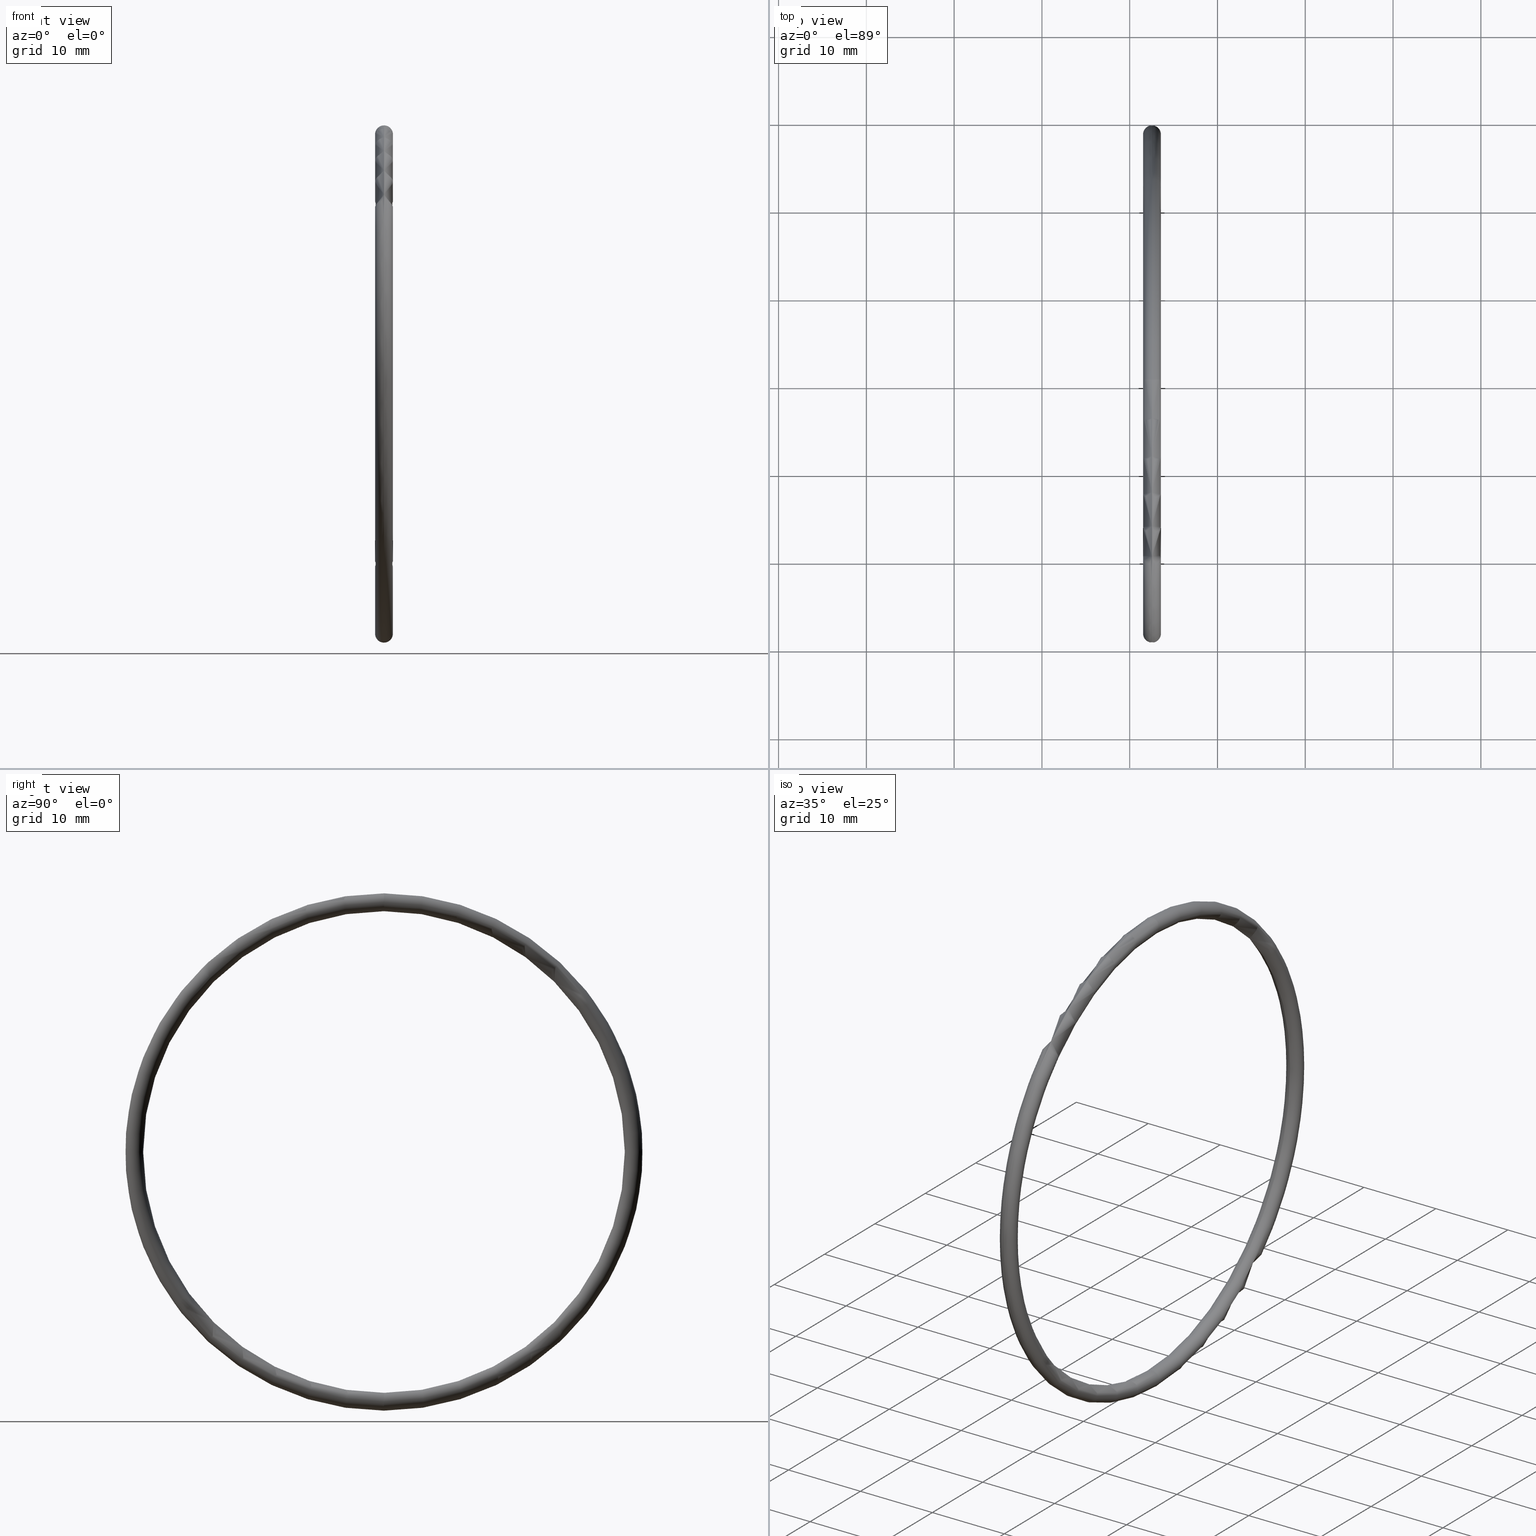
[diagram: canonical four-view strip — front | top / right | iso, engineering-drawing reading convention]
A machine part, canonical four-view strip (front | top / right | iso — engineering-drawing reading convention). The complete STEP part file that produces these views, byte-faithful:
ISO-10303-21;
HEADER;
FILE_DESCRIPTION (( 'STEP AP203' ),
    '1' );
FILE_NAME ('OM-63-VT.STEP',
    '2008-06-24T10:43:18',
    ( 'BSI05' ),
    ( 'BAYSTATE' ),
    'SwSTEP 2.0',
    'SolidWorks 2007',
    '' );
FILE_SCHEMA (( 'CONFIG_CONTROL_DESIGN' ));
ENDSEC;

DATA;
#1 = ORIENTED_EDGE ( 'NONE', *, *, #2, .T. ) ;
#2 = EDGE_CURVE ( 'NONE', #37, #30, #45, .T. ) ;
#3 = ORIENTED_EDGE ( 'NONE', *, *, #2, .F. ) ;
#4 = ADVANCED_FACE ( 'NONE', ( #53 ), #51, .T. ) ;
#5 = EDGE_CURVE ( 'NONE', #24, #37, #48, .T. ) ;
#6 = ORIENTED_EDGE ( 'NONE', *, *, #7, .F. ) ;
#7 = EDGE_CURVE ( 'NONE', #24, #33, #79, .T. ) ;
#8 = ORIENTED_EDGE ( 'NONE', *, *, #5, .T. ) ;
#9 = ORIENTED_EDGE ( 'NONE', *, *, #7, .T. ) ;
#10 = EDGE_LOOP ( 'NONE', ( #17, #3, #21, #9 ) ) ;
#11 = CLOSED_SHELL ( 'NONE', ( #14, #34, #23, #4 ) ) ;
#12 = ORIENTED_EDGE ( 'NONE', *, *, #20, .F. ) ;
#13 = ORIENTED_EDGE ( 'NONE', *, *, #5, .F. ) ;
#14 = ADVANCED_FACE ( 'NONE', ( #92 ), #109, .T. ) ;
#15 = EDGE_LOOP ( 'NONE', ( #16, #22, #31, #26 ) ) ;
#16 = ORIENTED_EDGE ( 'NONE', *, *, #36, .F. ) ;
#17 = ORIENTED_EDGE ( 'NONE', *, *, #46, .F. ) ;
#18 = EDGE_LOOP ( 'NONE', ( #12, #6, #8, #1 ) ) ;
#19 = ORIENTED_EDGE ( 'NONE', *, *, #20, .T. ) ;
#20 = EDGE_CURVE ( 'NONE', #33, #30, #108, .T. ) ;
#21 = ORIENTED_EDGE ( 'NONE', *, *, #27, .T. ) ;
#22 = ORIENTED_EDGE ( 'NONE', *, *, #46, .T. ) ;
#23 = ADVANCED_FACE ( 'NONE', ( #69 ), #85, .T. ) ;
#24 = VERTEX_POINT ( 'NONE', #77 ) ;
#25 = EDGE_LOOP ( 'NONE', ( #29, #19, #35, #13 ) ) ;
#26 = ORIENTED_EDGE ( 'NONE', *, *, #27, .F. ) ;
#27 = EDGE_CURVE ( 'NONE', #37, #24, #101, .T. ) ;
#28 = MANIFOLD_SOLID_BREP ( 'NONE', #11 ) ;
#29 = ORIENTED_EDGE ( 'NONE', *, *, #32, .F. ) ;
#30 = VERTEX_POINT ( 'NONE', #110 ) ;
#31 = ORIENTED_EDGE ( 'NONE', *, *, #32, .T. ) ;
#32 = EDGE_CURVE ( 'NONE', #33, #24, #98, .T. ) ;
#33 = VERTEX_POINT ( 'NONE', #99 ) ;
#34 = ADVANCED_FACE ( 'NONE', ( #74 ), #73, .T. ) ;
#35 = ORIENTED_EDGE ( 'NONE', *, *, #36, .T. ) ;
#36 = EDGE_CURVE ( 'NONE', #30, #37, #59, .T. ) ;
#37 = VERTEX_POINT ( 'NONE', #60 ) ;
#38 = DIRECTION ( 'NONE',  ( 0.0000000000000000000, 0.0000000000000000000, 1.000000000000000000 ) ) ;
#39 = DIRECTION ( 'NONE',  ( 0.0000000000000000000, -1.224646799147351000E-016, 1.000000000000000000 ) ) ;
#40 = DIRECTION ( 'NONE',  ( 0.0000000000000000000, 1.000000000000000000, 1.224646799147353200E-016 ) ) ;
#41 = CARTESIAN_POINT ( 'NONE',  ( 0.1000000000000001400, 1.371604415045035500E-016, -1.120000000000000100 ) ) ;
#42 = AXIS2_PLACEMENT_3D ( 'NONE', #41, #40, #39 ) ;
#43 = DIRECTION ( 'NONE',  ( -1.000000000000000000, 0.0000000000000000000, 0.0000000000000000000 ) ) ;
#44 = CARTESIAN_POINT ( 'NONE',  ( 0.1000000000000001400, 0.0000000000000000000, 0.0000000000000000000 ) ) ;
#45 = CIRCLE ( 'NONE', #42, 0.03999999999999998000 ) ;
#46 = EDGE_CURVE ( 'NONE', #30, #33, #88, .T. ) ;
#47 = AXIS2_PLACEMENT_3D ( 'NONE', #44, #43, #38 ) ;
#48 = CIRCLE ( 'NONE', #47, 1.080000000000000100 ) ;
#49 = AXIS2_PLACEMENT_3D ( 'NONE', #52, #54, #50 ) ;
#50 = DIRECTION ( 'NONE',  ( 0.0000000000000000000, 0.0000000000000000000, 1.000000000000000000 ) ) ;
#51 = TOROIDAL_SURFACE ( 'NONE', #49, 1.120000000000000100, 0.03999999999999995200 ) ;
#52 = CARTESIAN_POINT ( 'NONE',  ( 0.1000000000000001400, 0.0000000000000000000, 0.0000000000000000000 ) ) ;
#53 = FACE_OUTER_BOUND ( 'NONE', #10, .T. ) ;
#54 = DIRECTION ( 'NONE',  ( -1.000000000000000000, 0.0000000000000000000, 0.0000000000000000000 ) ) ;
#55 = DIRECTION ( 'NONE',  ( -1.000000000000000000, 0.0000000000000000000, 0.0000000000000000000 ) ) ;
#56 = CARTESIAN_POINT ( 'NONE',  ( 0.1000000000000001400, 0.0000000000000000000, 0.0000000000000000000 ) ) ;
#57 = AXIS2_PLACEMENT_3D ( 'NONE', #56, #55, #107 ) ;
#58 = CARTESIAN_POINT ( 'NONE',  ( 0.1000000000000001400, 0.0000000000000000000, 0.0000000000000000000 ) ) ;
#59 = CIRCLE ( 'NONE', #119, 0.03999999999999998000 ) ;
#60 = CARTESIAN_POINT ( 'NONE',  ( 0.1000000000000001400, 1.322618543079141500E-016, -1.080000000000000100 ) ) ;
#61 = DIRECTION ( 'NONE',  ( 0.0000000000000000000, 0.0000000000000000000, -1.000000000000000000 ) ) ;
#62 = LENGTH_MEASURE_WITH_UNIT ( LENGTH_MEASURE( 0.02539999999999999900 ), #95 );
#63 = DIMENSIONAL_EXPONENTS ( 1.000000000000000000, 0.0000000000000000000, 0.0000000000000000000, 0.0000000000000000000, 0.0000000000000000000, 0.0000000000000000000, 0.0000000000000000000 ) ;
#64 = DIRECTION ( 'NONE',  ( 0.0000000000000000000, -1.000000000000000000, 0.0000000000000000000 ) ) ;
#65 = DIRECTION ( 'NONE',  ( 0.0000000000000000000, 0.0000000000000000000, 1.000000000000000000 ) ) ;
#66 = DIRECTION ( 'NONE',  ( -1.000000000000000000, 0.0000000000000000000, 0.0000000000000000000 ) ) ;
#67 = CARTESIAN_POINT ( 'NONE',  ( 0.1000000000000001400, 0.0000000000000000000, 0.0000000000000000000 ) ) ;
#68 = AXIS2_PLACEMENT_3D ( 'NONE', #67, #66, #65 ) ;
#69 = FACE_OUTER_BOUND ( 'NONE', #18, .T. ) ;
#70 = DIRECTION ( 'NONE',  ( 0.0000000000000000000, 0.0000000000000000000, 1.000000000000000000 ) ) ;
#71 = ADVANCED_BREP_SHAPE_REPRESENTATION ( 'OM-63-VT', ( #28, #104 ), #72 ) ;
#72 =( GEOMETRIC_REPRESENTATION_CONTEXT ( 3 ) GLOBAL_UNCERTAINTY_ASSIGNED_CONTEXT ( ( #90 ) ) GLOBAL_UNIT_ASSIGNED_CONTEXT ( ( #115, #114, #91 ) ) REPRESENTATION_CONTEXT ( 'NONE', 'WORKASPACE' ) );
#73 = TOROIDAL_SURFACE ( 'NONE', #68, 1.120000000000000100, 0.03999999999999995200 ) ;
#74 = FACE_OUTER_BOUND ( 'NONE', #25, .T. ) ;
#75 = DIRECTION ( 'NONE',  ( 0.0000000000000000000, 0.0000000000000000000, -1.000000000000000000 ) ) ;
#76 = DIRECTION ( 'NONE',  ( 0.0000000000000000000, -1.000000000000000000, 0.0000000000000000000 ) ) ;
#77 = CARTESIAN_POINT ( 'NONE',  ( 0.1000000000000001400, 0.0000000000000000000, 1.080000000000000100 ) ) ;
#78 = AXIS2_PLACEMENT_3D ( 'NONE', #83, #64, #61 ) ;
#79 = CIRCLE ( 'NONE', #78, 0.03999999999999998000 ) ;
#80 = AXIS2_PLACEMENT_3D ( 'NONE', #113, #112, #111 ) ;
#81 = CARTESIAN_POINT ( 'NONE',  ( 0.1000000000000001400, 0.0000000000000000000, 1.120000000000000100 ) ) ;
#82 = AXIS2_PLACEMENT_3D ( 'NONE', #94, #100, #93 ) ;
#83 = CARTESIAN_POINT ( 'NONE',  ( 0.1000000000000001400, 0.0000000000000000000, 1.120000000000000100 ) ) ;
#84 = DIRECTION ( 'NONE',  ( -1.000000000000000000, 0.0000000000000000000, 0.0000000000000000000 ) ) ;
#85 = TOROIDAL_SURFACE ( 'NONE', #57, 1.120000000000000100, 0.03999999999999995200 ) ;
#86 = DIRECTION ( 'NONE',  ( -1.000000000000000000, 0.0000000000000000000, 0.0000000000000000000 ) ) ;
#87 = AXIS2_PLACEMENT_3D ( 'NONE', #106, #86, #96 ) ;
#88 = CIRCLE ( 'NONE', #87, 1.160000000000000100 ) ;
#89 = CARTESIAN_POINT ( 'NONE',  ( 0.0000000000000000000, 0.0000000000000000000, 0.0000000000000000000 ) ) ;
#90 = UNCERTAINTY_MEASURE_WITH_UNIT (LENGTH_MEASURE( 1.000000000000000100E-005 ), #115, 'distance_accuracy_value', 'NONE');
#91 =( NAMED_UNIT ( * ) SI_UNIT ( $, .STERADIAN. ) SOLID_ANGLE_UNIT ( ) );
#92 = FACE_OUTER_BOUND ( 'NONE', #15, .T. ) ;
#93 = DIRECTION ( 'NONE',  ( 0.0000000000000000000, 0.0000000000000000000, 1.000000000000000000 ) ) ;
#94 = CARTESIAN_POINT ( 'NONE',  ( 0.1000000000000001400, 0.0000000000000000000, 0.0000000000000000000 ) ) ;
#95 =( LENGTH_UNIT ( ) NAMED_UNIT ( * ) SI_UNIT ( $, .METRE. ) );
#96 = DIRECTION ( 'NONE',  ( 0.0000000000000000000, 0.0000000000000000000, 1.000000000000000000 ) ) ;
#97 = AXIS2_PLACEMENT_3D ( 'NONE', #81, #76, #75 ) ;
#98 = CIRCLE ( 'NONE', #97, 0.03999999999999998000 ) ;
#99 = CARTESIAN_POINT ( 'NONE',  ( 0.1000000000000001400, 0.0000000000000000000, 1.160000000000000100 ) ) ;
#100 = DIRECTION ( 'NONE',  ( -1.000000000000000000, 0.0000000000000000000, 0.0000000000000000000 ) ) ;
#101 = CIRCLE ( 'NONE', #80, 1.080000000000000100 ) ;
#102 = DIRECTION ( 'NONE',  ( 1.000000000000000000, 0.0000000000000000000, 0.0000000000000000000 ) ) ;
#103 = DIRECTION ( 'NONE',  ( 0.0000000000000000000, 0.0000000000000000000, 1.000000000000000000 ) ) ;
#104 = AXIS2_PLACEMENT_3D ( 'NONE', #89, #103, #102 ) ;
#105 = AXIS2_PLACEMENT_3D ( 'NONE', #58, #84, #70 ) ;
#106 = CARTESIAN_POINT ( 'NONE',  ( 0.1000000000000001400, 0.0000000000000000000, 0.0000000000000000000 ) ) ;
#107 = DIRECTION ( 'NONE',  ( 0.0000000000000000000, 0.0000000000000000000, 1.000000000000000000 ) ) ;
#108 = CIRCLE ( 'NONE', #82, 1.160000000000000100 ) ;
#109 = TOROIDAL_SURFACE ( 'NONE', #105, 1.120000000000000100, 0.03999999999999995200 ) ;
#110 = CARTESIAN_POINT ( 'NONE',  ( 0.1000000000000001400, 1.420590287010929800E-016, -1.160000000000000100 ) ) ;
#111 = DIRECTION ( 'NONE',  ( 0.0000000000000000000, 0.0000000000000000000, 1.000000000000000000 ) ) ;
#112 = DIRECTION ( 'NONE',  ( -1.000000000000000000, 0.0000000000000000000, 0.0000000000000000000 ) ) ;
#113 = CARTESIAN_POINT ( 'NONE',  ( 0.1000000000000001400, 0.0000000000000000000, 0.0000000000000000000 ) ) ;
#114 =( NAMED_UNIT ( * ) PLANE_ANGLE_UNIT ( ) SI_UNIT ( $, .RADIAN. ) );
#115 =( CONVERSION_BASED_UNIT ( 'INCH', #62 ) LENGTH_UNIT ( ) NAMED_UNIT ( #63 ) );
#116 = DIRECTION ( 'NONE',  ( 0.0000000000000000000, -1.224646799147351000E-016, 1.000000000000000000 ) ) ;
#117 = DIRECTION ( 'NONE',  ( 0.0000000000000000000, 1.000000000000000000, 1.224646799147353200E-016 ) ) ;
#118 = CARTESIAN_POINT ( 'NONE',  ( 0.1000000000000001400, 1.371604415045035500E-016, -1.120000000000000100 ) ) ;
#119 = AXIS2_PLACEMENT_3D ( 'NONE', #118, #117, #116 ) ;
#120 = PRODUCT ( 'OM-63-VT', 'OM-63-VT', '', ( #121 ) ) ;
#121 = MECHANICAL_CONTEXT ( 'NONE', #136, 'mechanical' ) ;
#122 = PERSON_AND_ORGANIZATION_ROLE ( 'design_owner' ) ;
#123 = PRODUCT_DEFINITION ( 'UNKNOWN', '', #188, #124 ) ;
#124 = DESIGN_CONTEXT ( 'detailed design', #126, 'design' ) ;
#125 = APPLICATION_PROTOCOL_DEFINITION ( 'international standard', 'config_control_design', 1994, #126 ) ;
#126 = APPLICATION_CONTEXT ( 'configuration controlled 3d designs of mechanical parts and assemblies' ) ;
#127 = PERSON_AND_ORGANIZATION_ROLE ( 'design_supplier' ) ;
#128 = PERSON_AND_ORGANIZATION ( #166, #189 ) ;
#129 = CC_DESIGN_PERSON_AND_ORGANIZATION_ASSIGNMENT ( #172, #171, ( #188 ) ) ;
#130 = CC_DESIGN_SECURITY_CLASSIFICATION ( #158, ( #188 ) ) ;
#131 = CC_DESIGN_APPROVAL ( #182, ( #158 ) ) ;
#132 = APPROVAL_DATE_TIME ( #176, #182 ) ;
#133 = PERSON_AND_ORGANIZATION ( #166, #189 ) ;
#134 = CC_DESIGN_PERSON_AND_ORGANIZATION_ASSIGNMENT ( #133, #122, ( #120 ) ) ;
#135 = APPLICATION_PROTOCOL_DEFINITION ( 'international standard', 'config_control_design', 1994, #136 ) ;
#136 = APPLICATION_CONTEXT ( 'configuration controlled 3d designs of mechanical parts and assemblies' ) ;
#137 = DATE_AND_TIME ( #167, #168 ) ;
#138 = APPROVAL_ROLE ( '' ) ;
#139 = APPROVAL ( #140, 'UNSPECIFIED' ) ;
#140 = APPROVAL_STATUS ( 'not_yet_approved' ) ;
#141 = PERSON_AND_ORGANIZATION ( #166, #189 ) ;
#142 = PERSON_AND_ORGANIZATION_ROLE ( 'creator' ) ;
#143 = PERSON_AND_ORGANIZATION ( #166, #189 ) ;
#144 = CC_DESIGN_APPROVAL ( #139, ( #123 ) ) ;
#145 = APPROVAL_DATE_TIME ( #137, #139 ) ;
#146 = APPROVAL_STATUS ( 'not_yet_approved' ) ;
#147 = PERSON_AND_ORGANIZATION ( #166, #189 ) ;
#148 = CC_DESIGN_DATE_AND_TIME_ASSIGNMENT ( #191, #149, ( #158 ) ) ;
#149 = DATE_TIME_ROLE ( 'classification_date' ) ;
#150 = PRODUCT_RELATED_PRODUCT_CATEGORY ( 'detail', '', ( #120 ) ) ;
#151 = LOCAL_TIME ( 16, 13, 18.00000000000000000, #152 ) ;
#152 = COORDINATED_UNIVERSAL_TIME_OFFSET ( 5, 30, .AHEAD. ) ;
#153 = PERSON_AND_ORGANIZATION ( #166, #189 ) ;
#154 = CC_DESIGN_DATE_AND_TIME_ASSIGNMENT ( #156, #155, ( #123 ) ) ;
#155 = DATE_TIME_ROLE ( 'creation_date' ) ;
#156 = DATE_AND_TIME ( #157, #151 ) ;
#157 = CALENDAR_DATE ( 2008, 24, 6 ) ;
#158 = SECURITY_CLASSIFICATION ( '', '', #159 ) ;
#159 = SECURITY_CLASSIFICATION_LEVEL ( 'unclassified' ) ;
#160 = CC_DESIGN_PERSON_AND_ORGANIZATION_ASSIGNMENT ( #128, #127, ( #188 ) ) ;
#161 = CALENDAR_DATE ( 2008, 24, 6 ) ;
#162 = LOCAL_TIME ( 16, 13, 18.00000000000000000, #163 ) ;
#163 = COORDINATED_UNIVERSAL_TIME_OFFSET ( 5, 30, .AHEAD. ) ;
#164 = APPROVAL_PERSON_ORGANIZATION ( #153, #186, #165 ) ;
#165 = APPROVAL_ROLE ( '' ) ;
#166 = PERSON ( 'UNSPECIFIED', 'UNSPECIFIED', 'UNSPECIFIED', ('UNSPECIFIED'), ('UNSPECIFIED'), ('UNSPECIFIED') ) ;
#167 = CALENDAR_DATE ( 2008, 24, 6 ) ;
#168 = LOCAL_TIME ( 16, 13, 18.00000000000000000, #169 ) ;
#169 = COORDINATED_UNIVERSAL_TIME_OFFSET ( 5, 30, .AHEAD. ) ;
#170 = APPROVAL_PERSON_ORGANIZATION ( #141, #139, #138 ) ;
#171 = PERSON_AND_ORGANIZATION_ROLE ( 'creator' ) ;
#172 = PERSON_AND_ORGANIZATION ( #166, #189 ) ;
#173 = CC_DESIGN_APPROVAL ( #186, ( #188 ) ) ;
#174 = APPROVAL_DATE_TIME ( #175, #186 ) ;
#175 = DATE_AND_TIME ( #161, #162 ) ;
#176 = DATE_AND_TIME ( #177, #178 ) ;
#177 = CALENDAR_DATE ( 2008, 24, 6 ) ;
#178 = LOCAL_TIME ( 16, 13, 18.00000000000000000, #179 ) ;
#179 = COORDINATED_UNIVERSAL_TIME_OFFSET ( 5, 30, .AHEAD. ) ;
#180 = APPROVAL_PERSON_ORGANIZATION ( #147, #182, #181 ) ;
#181 = APPROVAL_ROLE ( '' ) ;
#182 = APPROVAL ( #146, 'UNSPECIFIED' ) ;
#183 = CC_DESIGN_PERSON_AND_ORGANIZATION_ASSIGNMENT ( #185, #184, ( #158 ) ) ;
#184 = PERSON_AND_ORGANIZATION_ROLE ( 'classification_officer' ) ;
#185 = PERSON_AND_ORGANIZATION ( #166, #189 ) ;
#186 = APPROVAL ( #187, 'UNSPECIFIED' ) ;
#187 = APPROVAL_STATUS ( 'not_yet_approved' ) ;
#188 = PRODUCT_DEFINITION_FORMATION_WITH_SPECIFIED_SOURCE ( 'ANY', '', #120, .NOT_KNOWN. ) ;
#189 = ORGANIZATION ( 'UNSPECIFIED', 'UNSPECIFIED', '' ) ;
#190 = PRODUCT_DEFINITION_SHAPE ( 'NONE', 'NONE',  #123 ) ;
#191 = DATE_AND_TIME ( #192, #193 ) ;
#192 = CALENDAR_DATE ( 2008, 24, 6 ) ;
#193 = LOCAL_TIME ( 16, 13, 18.00000000000000000, #194 ) ;
#194 = COORDINATED_UNIVERSAL_TIME_OFFSET ( 5, 30, .AHEAD. ) ;
#195 = CC_DESIGN_PERSON_AND_ORGANIZATION_ASSIGNMENT ( #143, #142, ( #123 ) ) ;
#196 = SHAPE_DEFINITION_REPRESENTATION ( #190, #71 ) ;
ENDSEC;
END-ISO-10303-21;
